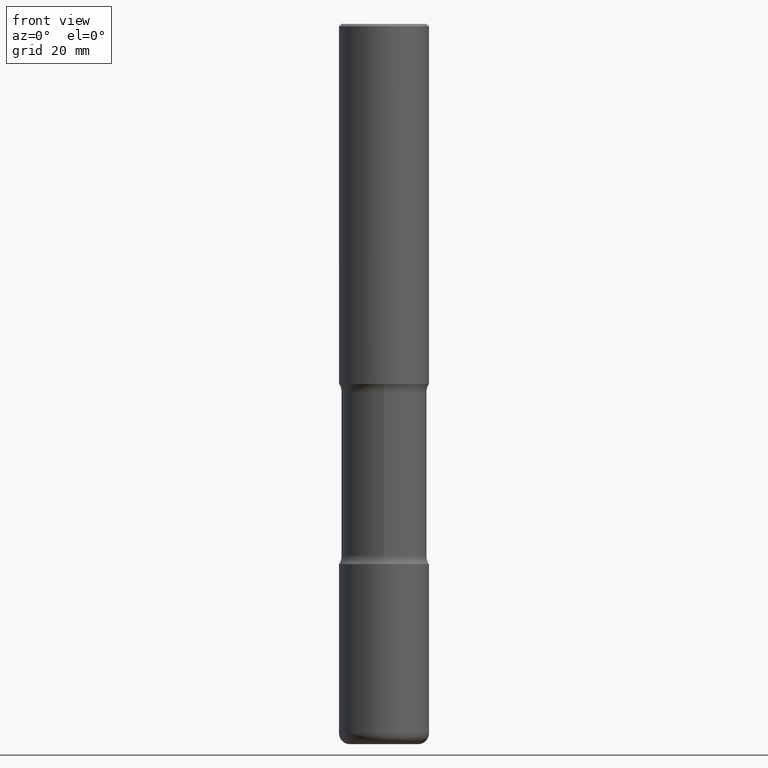
[diagram: clean part render]
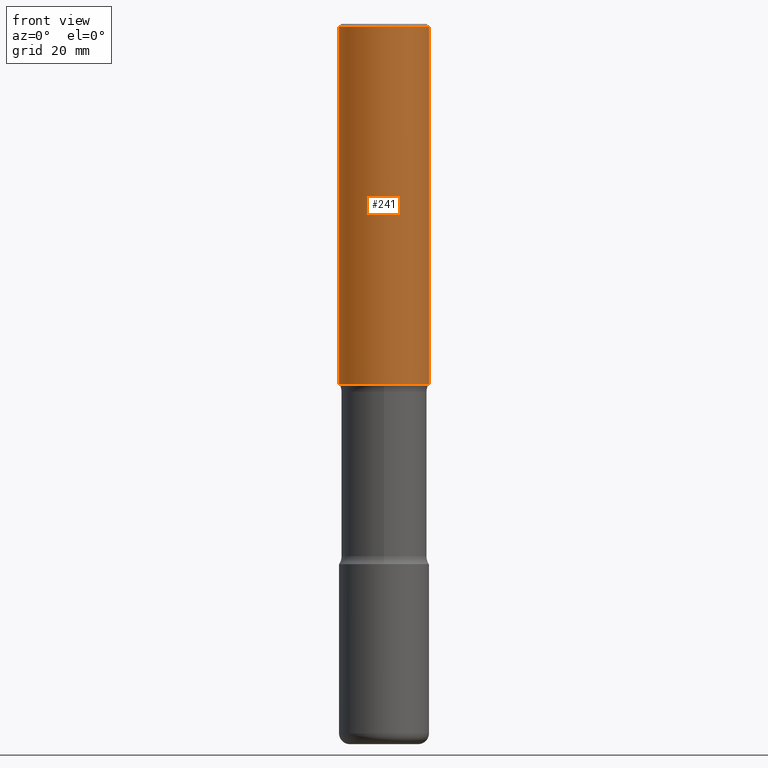
[diagram: same view with one face highlighted and labeled with its STEP entity id]
A machine part, front view. The second image highlights one B-rep face of the part: STEP entity #241.
In plain terms, the highlighted cylindrical surface (partial cylindrical patch) has radius 9.525 mm, axis along (-0, 0, 1).
Its self-contained STEP definition (entity closure, byte-faithful):
#5 = DIRECTION ( 'NONE',  ( 1.000000000000000000, -6.982962677686265922E-15, 0.000000000000000000 ) ) ;
#27 = CARTESIAN_POINT ( 'NONE',  ( 4.890937612370289799E-31, -6.982962677686315028E-17, -0.02000000000000006981 ) ) ;
#31 = DIRECTION ( 'NONE',  ( -2.445468806185136877E-29, 3.491481338843145188E-15, 1.000000000000000000 ) ) ;
#35 = FACE_OUTER_BOUND ( 'NONE', #367, .T. ) ;
#55 = EDGE_CURVE ( 'NONE', #456, #470, #140, .T. ) ;
#110 = VERTEX_POINT ( 'NONE', #366 ) ;
#121 = LINE ( 'NONE', #207, #478 ) ;
#140 = LINE ( 'NONE', #316, #288 ) ;
#150 = EDGE_CURVE ( 'NONE', #165, #470, #500, .T. ) ;
#161 = DIRECTION ( 'NONE',  ( 1.000000000000000000, -6.982962677686266711E-15, 4.876176775795935793E-29 ) ) ;
#165 = VERTEX_POINT ( 'NONE', #254 ) ;
#168 = DIRECTION ( 'NONE',  ( 1.000000000000000000, -6.982962677686265922E-15, 0.000000000000000000 ) ) ;
#195 = ORIENTED_EDGE ( 'NONE', *, *, #150, .F. ) ;
#197 = DIRECTION ( 'NONE',  ( -2.445468806185136597E-29, 3.491481338843145583E-15, 1.000000000000000000 ) ) ;
#207 = CARTESIAN_POINT ( 'NONE',  ( -0.3750000000000002220, 2.664535259100377275E-15, -1.844600658845590719E-29 ) ) ;
#220 = CIRCLE ( 'NONE', #537, 0.3750000000000003886 ) ;
#241 = ADVANCED_FACE ( 'NONE', ( #35 ), #374, .T. ) ;
#254 = CARTESIAN_POINT ( 'NONE',  ( -0.3750000000000001110, 2.548781377355487113E-15, -0.02000000000000006981 ) ) ;
#258 = EDGE_CURVE ( 'NONE', #110, #165, #121, .T. ) ;
#262 = AXIS2_PLACEMENT_3D ( 'NONE', #27, #197, #168 ) ;
#266 = AXIS2_PLACEMENT_3D ( 'NONE', #552, #548, #161 ) ;
#288 = VECTOR ( 'NONE', #31, 39.37007874015748143 ) ;
#302 = DIRECTION ( 'NONE',  ( -2.445468806185136597E-29, 3.491481338843145583E-15, 1.000000000000000000 ) ) ;
#316 = CARTESIAN_POINT ( 'NONE',  ( 0.3750000000000002220, -2.618611004132351594E-15, 1.828566290923477043E-29 ) ) ;
#343 = CARTESIAN_POINT ( 'NONE',  ( 0.3750000000000003886, -1.309305502066178637E-14, -2.999999999999999112 ) ) ;
#351 = ORIENTED_EDGE ( 'NONE', *, *, #55, .T. ) ;
#366 = CARTESIAN_POINT ( 'NONE',  ( -0.3750000000000003886, -2.607601562552767029E-15, -2.999999999999999112 ) ) ;
#367 = EDGE_LOOP ( 'NONE', ( #519, #424, #351, #195 ) ) ;
#374 = CYLINDRICAL_SURFACE ( 'NONE', #266, 0.3750000000000002220 ) ;
#377 = DIRECTION ( 'NONE',  ( -2.445468806185136877E-29, 3.491481338843145188E-15, 1.000000000000000000 ) ) ;
#420 = EDGE_CURVE ( 'NONE', #110, #456, #220, .T. ) ;
#424 = ORIENTED_EDGE ( 'NONE', *, *, #420, .T. ) ;
#441 = CARTESIAN_POINT ( 'NONE',  ( 7.336406418555407548E-29, -1.047444401652943320E-14, -2.999999999999999112 ) ) ;
#456 = VERTEX_POINT ( 'NONE', #343 ) ;
#470 = VERTEX_POINT ( 'NONE', #483 ) ;
#478 = VECTOR ( 'NONE', #377, 39.37007874015748143 ) ;
#483 = CARTESIAN_POINT ( 'NONE',  ( 0.3750000000000001110, -2.642516375941188423E-15, -0.02000000000000006981 ) ) ;
#500 = CIRCLE ( 'NONE', #262, 0.3750000000000001110 ) ;
#519 = ORIENTED_EDGE ( 'NONE', *, *, #258, .F. ) ;
#537 = AXIS2_PLACEMENT_3D ( 'NONE', #441, #302, #5 ) ;
#548 = DIRECTION ( 'NONE',  ( -2.445468806185136597E-29, 3.491481338843145583E-15, 1.000000000000000000 ) ) ;
#552 = CARTESIAN_POINT ( 'NONE',  ( 0.000000000000000000, 0.000000000000000000, 0.000000000000000000 ) ) ;